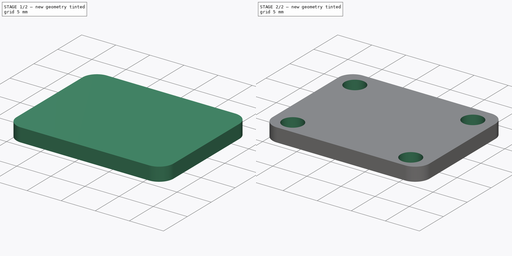
[diagram: build sequence overview — one tinted view per stage of 2, left to right]
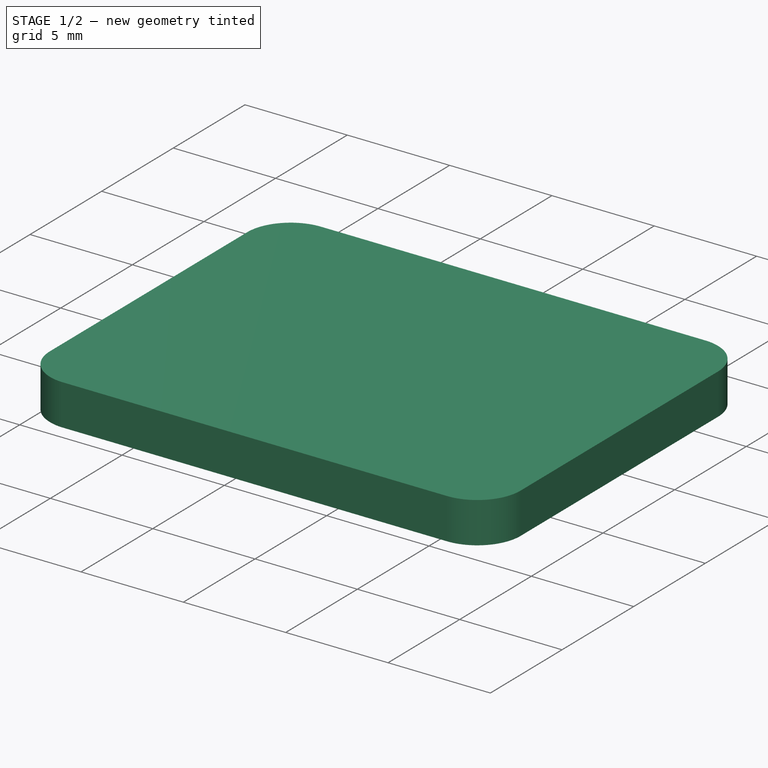
[diagram: stage 1 of 2 — iso view after this stage's code; geometry added in this stage tinted green]
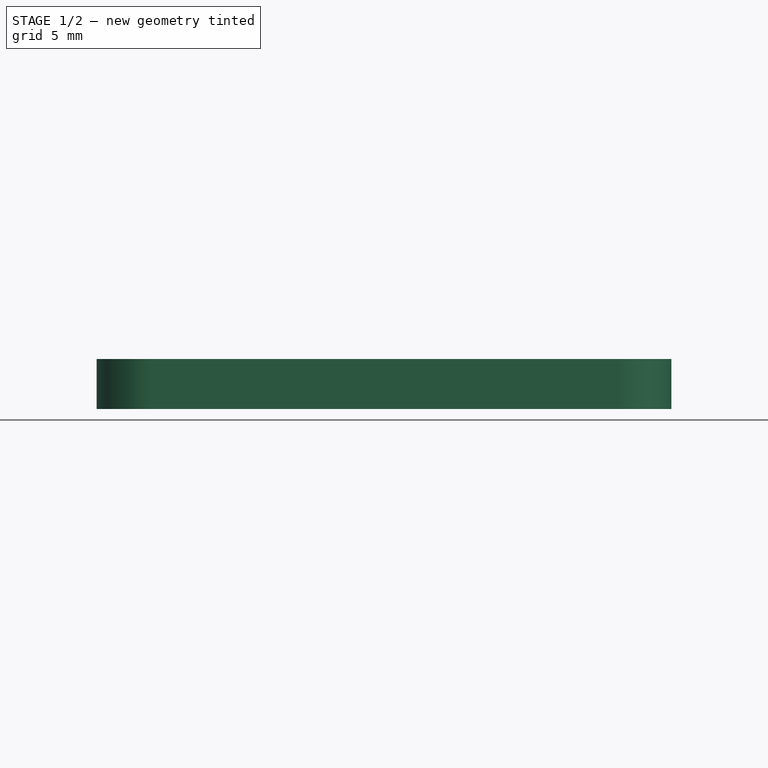
[diagram: stage 1 of 2 — front view after this stage's code; geometry added in this stage tinted green]
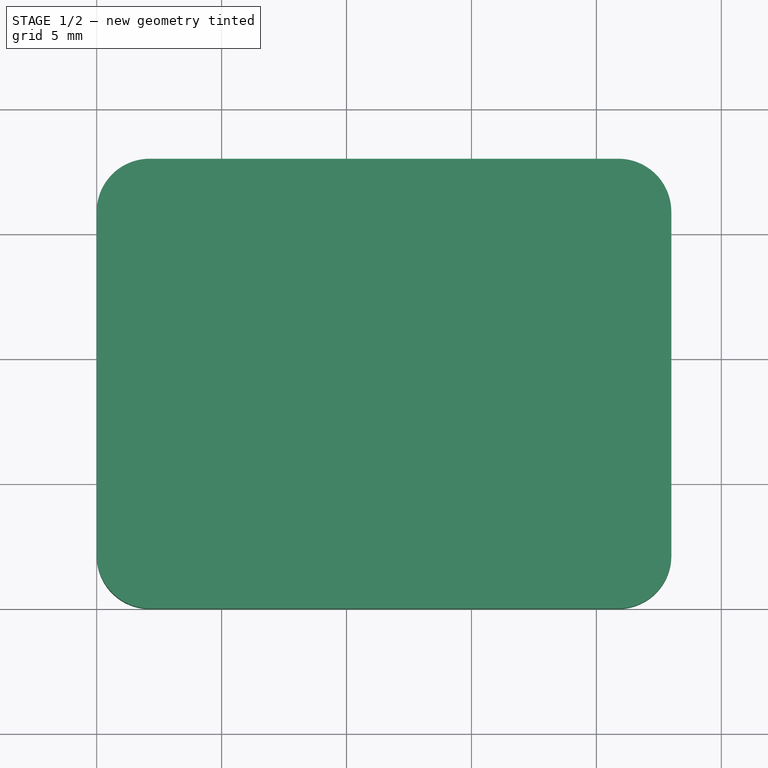
[diagram: stage 1 of 2 — top view after this stage's code; geometry added in this stage tinted green]
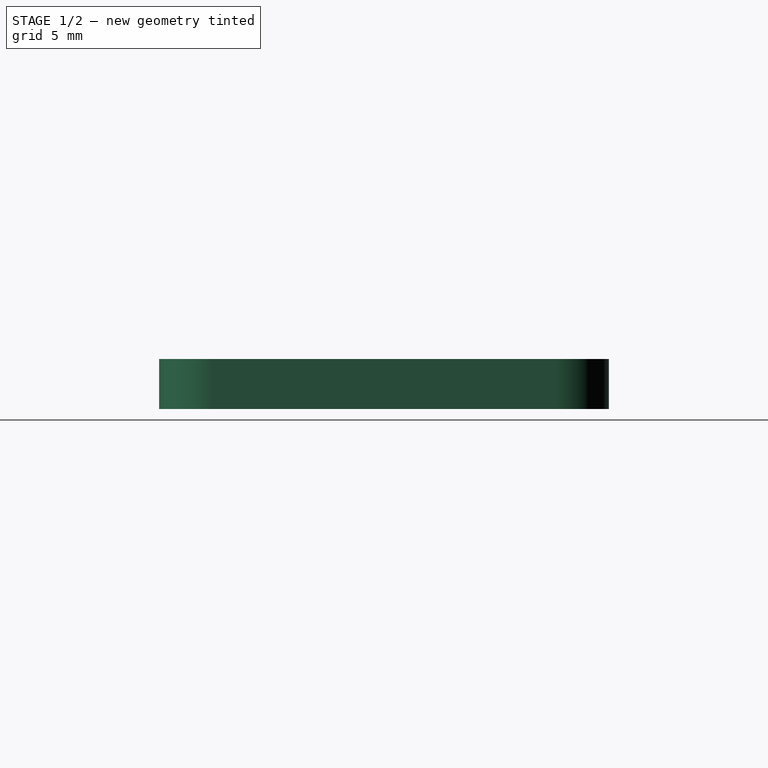
[diagram: stage 1 of 2 — right view after this stage's code; geometry added in this stage tinted green]
FCSTD DOCUMENT  (FreeCAD 1.0R39319 (Git))
Label: motor_encoder_bracket
License: All rights reserved
LicenseURL: http://en.wikipedia.org/wiki/All_rights_reserved
objects: Sketcher::SketchObject×2, PartDesign::Pad×1, Spreadsheet::Sheet×1, PartDesign::Pocket×1, PartDesign::Body×1
note: 11 computed .brp shape members not serialized (recipe doc carries the construction recipe); baked Part::Feature solids carry a one-line shape summary decoded from their .brp

FEATURE [Sketcher::SketchObject] Sketch  label="bracket"
  ArcFitTolerance = 1e-06
  AttachmentSupport = -> [XY_Plane]
  FullyConstrained = true
  MakeInternals = false
  MapMode = 5
  expr: Constraints[26] = 16 + 2
  sketch-geometry (12):
    g0: LineSegment StartX=0 StartY=15.8787 StartZ=0 EndX=0 EndY=2.12132 EndZ=0
    g1: LineSegment StartX=2.12132 StartY=0 StartZ=0 EndX=20.8787 EndY=0 EndZ=0
    g2: LineSegment StartX=23 StartY=2.12132 StartZ=0 EndX=23 EndY=15.8787 EndZ=0
    g3: LineSegment StartX=20.8787 StartY=18 StartZ=0 EndX=2.12132 EndY=18 EndZ=0
    g4: ArcOfCircle CenterX=2.12132 CenterY=2.12132 CenterZ=0 NormalX=0 NormalY=0 NormalZ=1 AngleXU=0 Radius=2.12132 StartAngle=3.14159 EndAngle=4.71239
    g5: GeomPoint [constr] X=0 Y=0 Z=0
    g6: ArcOfCircle CenterX=20.8787 CenterY=2.12132 CenterZ=0 NormalX=0 NormalY=0 NormalZ=1 AngleXU=0 Radius=2.12132 StartAngle=4.71239 EndAngle=6.28319
    g7: GeomPoint [constr] X=23 Y=0 Z=0
    g8: ArcOfCircle CenterX=2.12132 CenterY=15.8787 CenterZ=0 NormalX=0 NormalY=0 NormalZ=1 AngleXU=0 Radius=2.12132 StartAngle=1.5708 EndAngle=3.14159
    g9: GeomPoint [constr] X=0 Y=18 Z=0
    g10: ArcOfCircle CenterX=20.8787 CenterY=15.8787 CenterZ=0 NormalX=0 NormalY=0 NormalZ=1 AngleXU=0 Radius=2.12132 StartAngle=1e-16 EndAngle=1.5708
    g11: GeomPoint [constr] X=23 Y=18 Z=0
  constraints (28):
    c: Vertical(g0)
    c: Vertical(g2)
    c: Horizontal(g1)
    c: PointOnObject(g5,g0)
    c: PointOnObject(g5,g1)
    c: Tangent(g0,g4) = -1.5708
    c: Tangent(g1,g4) = -1.5708
    c: PointOnObject(g7,g1)
    c: PointOnObject(g7,g2)
    c: Tangent(g1,g6) = -1.5708
    c: Tangent(g2,g6) = -1.5708
    c: PointOnObject(g9,g0)
    c: PointOnObject(g9,g3)
    c: Tangent(g0,g8) = -1.5708
    c: Tangent(g3,g8) = -1.5708
    c: PointOnObject(g11,g3)
    c: PointOnObject(g11,g2)
    c: Tangent(g3,g10) = -1.5708
    c: Tangent(g2,g10) = -1.5708
    c: Vertical(g1,g3)
    c: Vertical(g1,g3)
    c: Horizontal(g2,g0)
    c: Equal(g4,g6)
    c: Distance(g0,g1) = 3
    c: DistanceX(g-1,g5) = 0
    c: DistanceY(g-1,g5) = 0
    c: DistanceY(g7,g11) = 18
    c: DistanceX(g9,g11) = 23
FEATURE [Sketcher::SketchObject] Sketch001  label="holes"
  ArcFitTolerance = 1e-06
  AttachmentSupport = -> [XY_Plane]
  FullyConstrained = true
  MakeInternals = false
  MapMode = 5
  expr: Constraints[10] = Spreadsheet.hole_x
  expr: Constraints[11] = Spreadsheet.hole_y
  expr: Constraints[3] = Spreadsheet.hole_width
  expr: Constraints[9] = 11 + 2
  sketch-geometry (4):
    g0: Circle CenterX=20.15 CenterY=15.25 CenterZ=0 NormalX=0 NormalY=0 NormalZ=1 AngleXU=0 Radius=1.5
    g1: Circle CenterX=2.85 CenterY=15.25 CenterZ=0 NormalX=0 NormalY=0 NormalZ=1 AngleXU=0 Radius=1.5
    g2: Circle CenterX=2.85 CenterY=2.25 CenterZ=0 NormalX=0 NormalY=0 NormalZ=1 AngleXU=0 Radius=1.5
    g3: Circle CenterX=20.15 CenterY=2.25 CenterZ=0 NormalX=0 NormalY=0 NormalZ=1 AngleXU=0 Radius=1.5
  constraints (12):
    c: Horizontal(g1,g0)
    c: Diameter(g0) = 3
    c: Equal(g1,g0)
    c: DistanceX(g1,g0) = 17.3
    c: Equal(g3,g2)
    c: Equal(g2,g1)
    c: Vertical(g2,g1)
    c: Vertical(g0,g3)
    c: Horizontal(g2,g3)
    c: DistanceY(g2,g1) = 13
    c: DistanceX(g-1,g2) = 2.85
    c: DistanceY(g-1,g2) = 2.25
FEATURE [PartDesign::Pad] Pad
  Direction = (0,0,1)
  Length = 2
  Length2 = 10
  Profile = -> Sketch
  ReferenceAxis = -> Sketch [N_Axis]
  Suppressed = false
  Type = 0
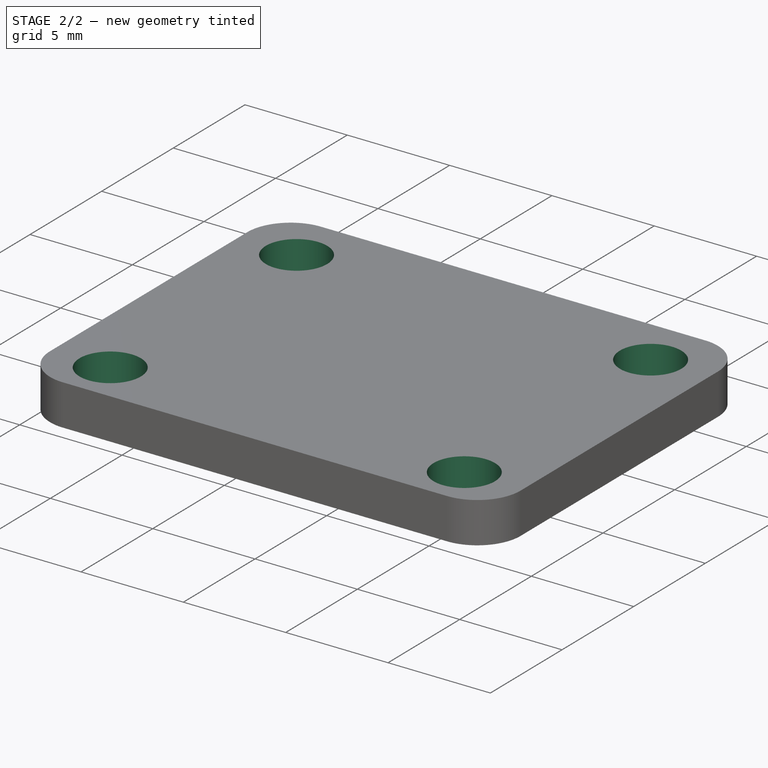
[diagram: stage 2 of 2 — iso view after this stage's code; geometry added in this stage tinted green]
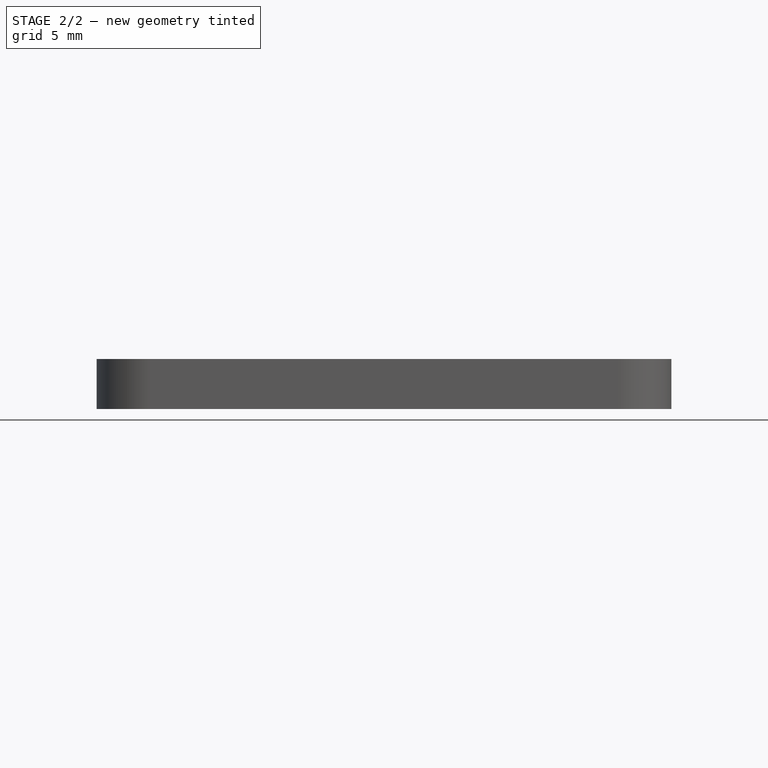
[diagram: stage 2 of 2 — front view after this stage's code; geometry added in this stage tinted green]
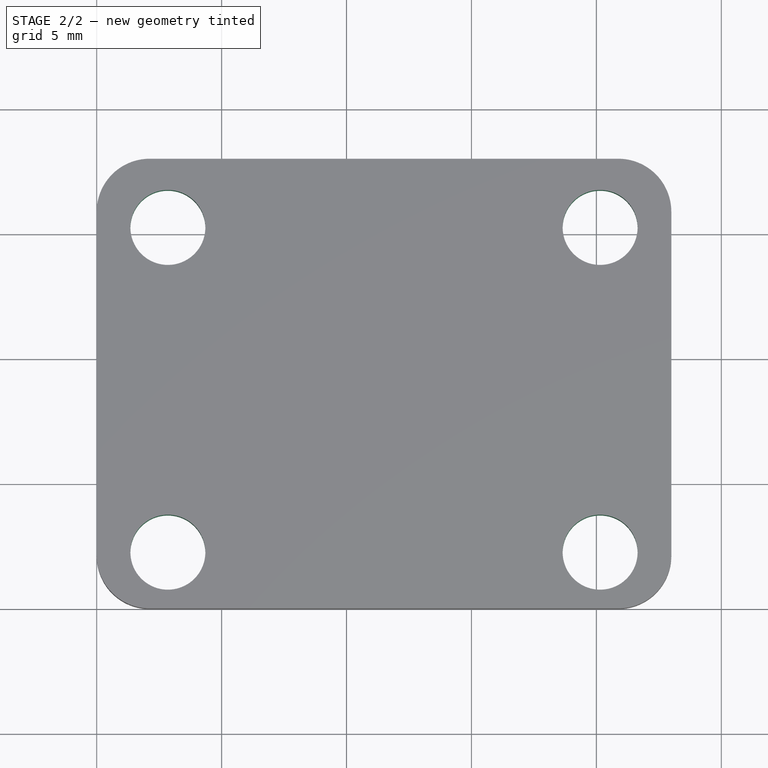
[diagram: stage 2 of 2 — top view after this stage's code; geometry added in this stage tinted green]
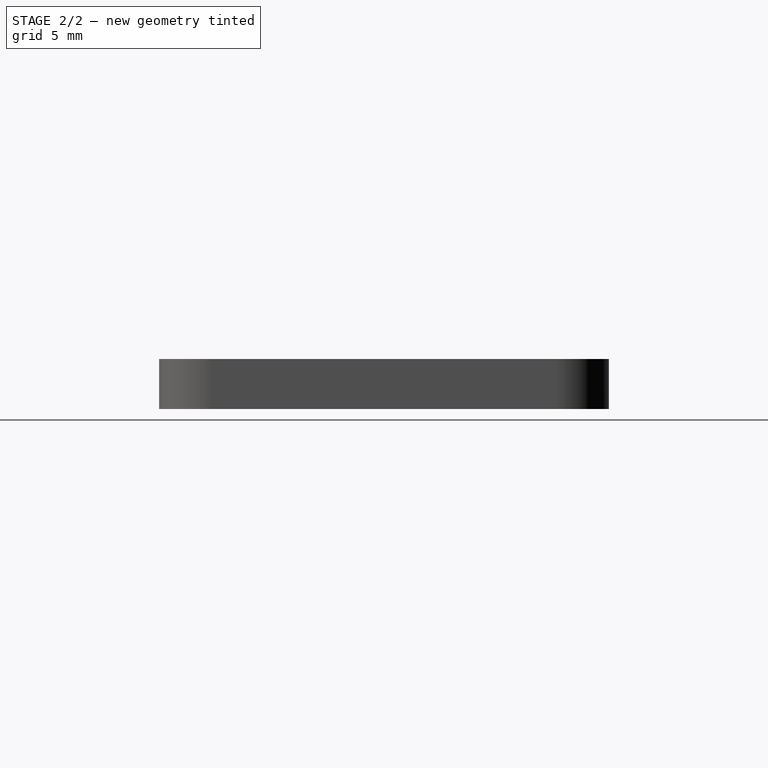
[diagram: stage 2 of 2 — right view after this stage's code; geometry added in this stage tinted green]
FEATURE [Spreadsheet::Sheet] Spreadsheet
  cells = A2='hole_width; B2(hole_width)=17.3; A3='hole_y; B3(hole_y)=2.25; A4='hole_x; B4(hole_x)==(23 - 17.3) / 2
FEATURE [PartDesign::Pocket] Pocket
  BaseFeature = -> Pad
  Direction = (0,0,-1)
  Length = 3
  Length2 = 5
  Profile = -> Sketch001
  ReferenceAxis = -> Sketch001 [N_Axis]
  Reversed = true
  Suppressed = false
  Type = 1
FEATURE [PartDesign::Body] Body
  AllowCompound = false
  Group = -> [Sketch,Pad,Sketch001,Pocket]
  Origin = -> Origin
  Tip = -> Pocket
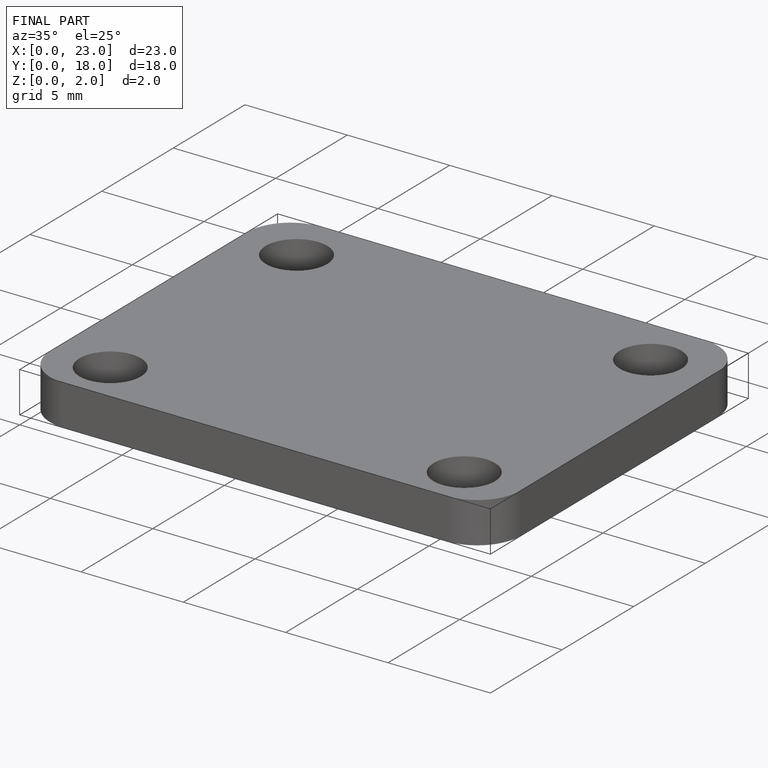
[diagram: finished part — iso view with bounding-box wireframe]
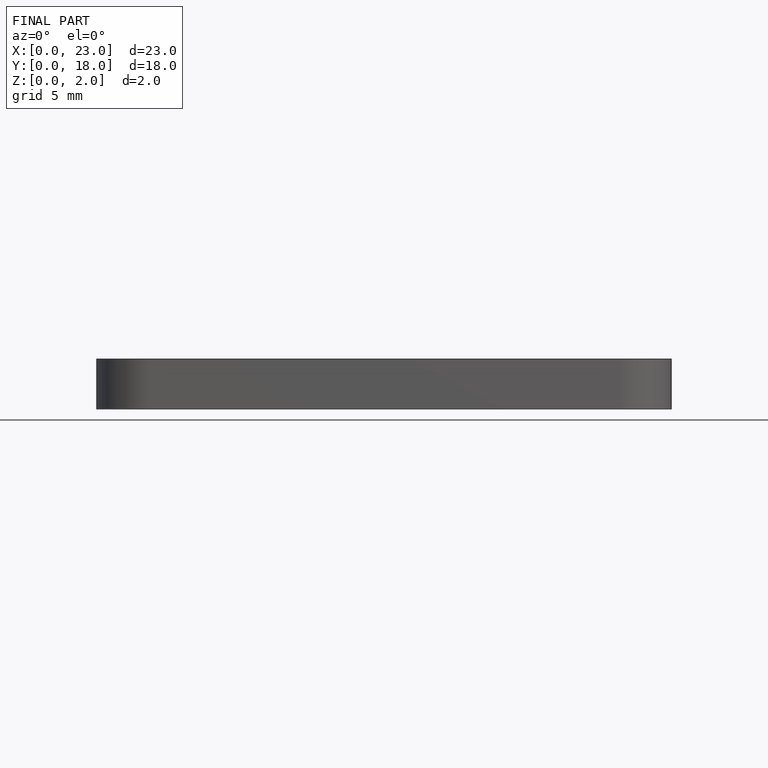
[diagram: finished part — front view with bounding-box wireframe]
